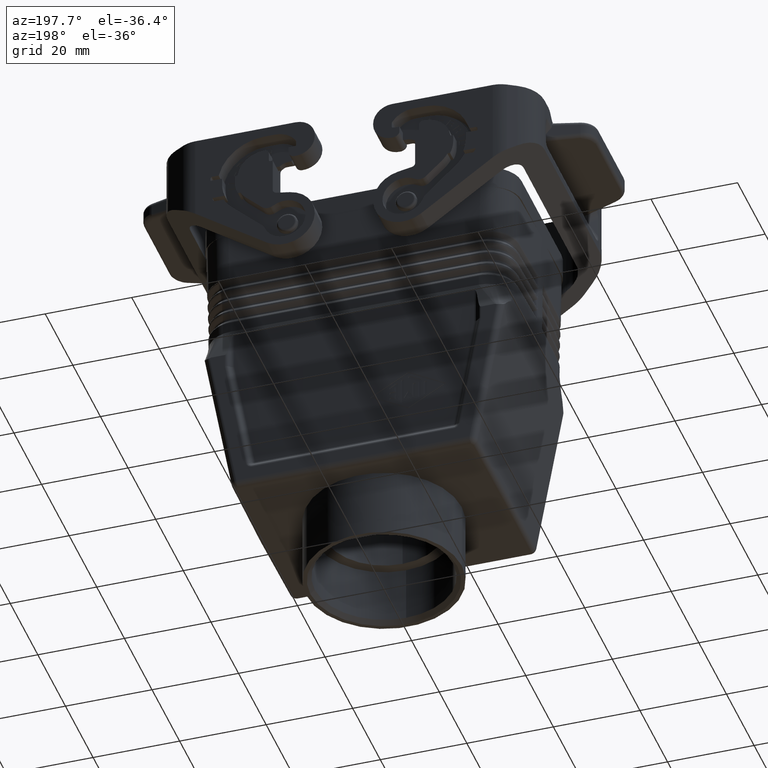
[diagram: clean part render]
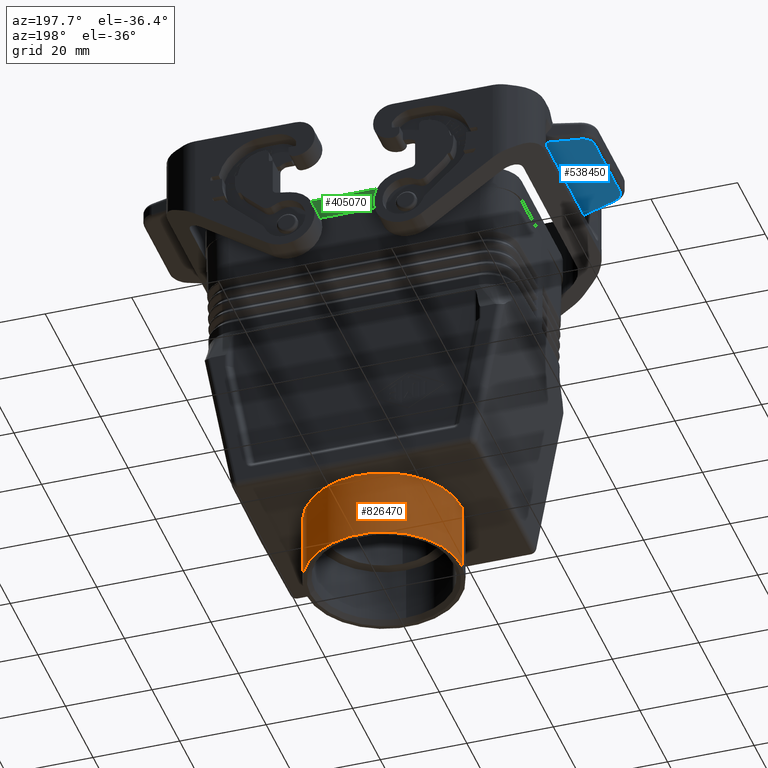
[diagram: same view with three faces highlighted in distinct colors, each labeled with its STEP entity id]
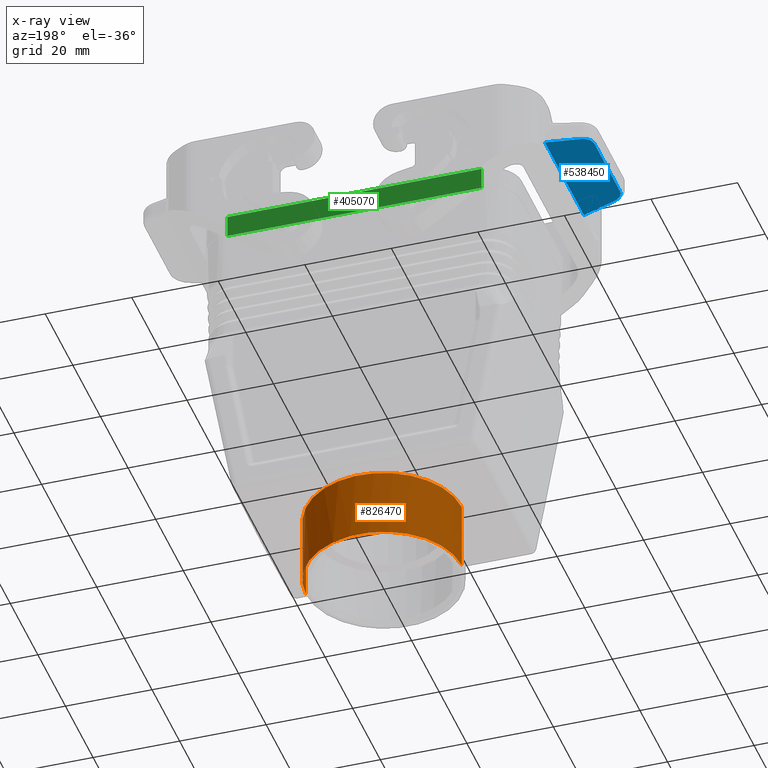
[diagram: x-ray of the same camera — body ghosted, the three highlighted faces saturated]
A machine part, auxiliary view with three faces highlighted in distinct colors.
The next image is the same camera in x-ray (body ghosted, the three faces saturated) — at least one of them is partly hidden behind the body in this view.
Their STEP definitions:

[orange] entity #826470 — the highlighted cylindrical surface (partial cylindrical patch) has radius 18 mm, axis along (0, 0, -1).
#360=CARTESIAN_POINT('',(95.6199999999998,9.40999999999998,70.));
#370=VERTEX_POINT('',#360);
#450=CARTESIAN_POINT('',(95.6199999999998,45.41,70.));
#460=VERTEX_POINT('',#450);
#183130=CARTESIAN_POINT('',(95.6199999999998,27.41,70.));
#183140=DIRECTION('',(-0.00872653549837393,0.,0.999961923064171));
#183150=DIRECTION('',(0.999961923064171,-2.86253554560525E-14,
0.00872653549837393));
#183160=AXIS2_PLACEMENT_3D('',#183130,#183140,#183150);
#183170=ELLIPSE('',#183160,18.0006854109433,18.);
#183180=EDGE_CURVE('',#460,#370,#183170,.T.);
#826160=CARTESIAN_POINT('',(95.6199999999998,27.41,70.));
#826170=DIRECTION('',(2.4980018054066E-16,-2.4980018054066E-16,1.));
#826180=DIRECTION('',(-6.24001301981464E-32,-1.,-2.4980018054066E-16));
#826190=AXIS2_PLACEMENT_3D('',#826160,#826170,#826180);
#826200=CYLINDRICAL_SURFACE('',#826190,18.);
#826210=CARTESIAN_POINT('',(95.6199999999998,45.41,70.));
#826220=DIRECTION('',(2.4980018054066E-16,-2.4980018054066E-16,1.));
#826230=VECTOR('',#826220,1.);
#826240=LINE('',#826210,#826230);
#826250=CARTESIAN_POINT('',(95.6199999999998,45.41,86.));
#826260=VERTEX_POINT('',#826250);
#826270=EDGE_CURVE('',#460,#826260,#826240,.T.);
#826280=ORIENTED_EDGE('',*,*,#826270,.F.);
#826290=CARTESIAN_POINT('',(95.6199999999998,27.41,86.));
#826300=DIRECTION('',(2.4980018054066E-16,-2.4980018054066E-16,1.));
#826310=DIRECTION('',(-6.24001301981464E-32,-1.,-2.4980018054066E-16));
#826320=AXIS2_PLACEMENT_3D('',#826290,#826300,#826310);
#826330=CIRCLE('',#826320,18.);
#826340=CARTESIAN_POINT('',(95.6199999999998,9.40999999999998,86.));
#826350=VERTEX_POINT('',#826340);
#826360=EDGE_CURVE('',#826260,#826350,#826330,.T.);
#826370=ORIENTED_EDGE('',*,*,#826360,.F.);
#826380=CARTESIAN_POINT('',(95.6199999999998,9.40999999999998,70.));
#826390=DIRECTION('',(2.4980018054066E-16,-2.4980018054066E-16,1.));
#826400=VECTOR('',#826390,1.);
#826410=LINE('',#826380,#826400);
#826420=EDGE_CURVE('',#370,#826350,#826410,.T.);
#826430=ORIENTED_EDGE('',*,*,#826420,.T.);
#826440=ORIENTED_EDGE('',*,*,#183180,.T.);
#826450=EDGE_LOOP('',(#826440,#826430,#826370,#826280));
#826460=FACE_OUTER_BOUND('',#826450,.T.);
#826470=ADVANCED_FACE('',(#826460),#826200,.T.);

[blue] entity #538450 — the highlighted planar face has unit normal (-0.0872, 0, -0.9962).
#537460=CARTESIAN_POINT('',(125.370000262344,77.9100000000809,
-15.2750226730054));
#537470=DIRECTION('',(2.16385292593205E-16,0.0871557427478867,
0.996194698091726));
#537480=DIRECTION('',(-1.,-1.86951876984489E-16,2.33568019118764E-16));
#537490=AXIS2_PLACEMENT_3D('',#537460,#537470,#537480);
#537500=PLANE('',#537490);
#537510=CARTESIAN_POINT('',(126.619999999999,78.9971557428286,
-15.3701364759832));
#537520=DIRECTION('',(1.,3.72486331023611E-16,-2.49800180540702E-16));
#537530=VECTOR('',#537520,1.);
#537540=LINE('',#537510,#537530);
#537550=CARTESIAN_POINT('',(86.4393077142602,78.9971557428286,
-15.3701364759831));
#537560=VERTEX_POINT('',#537550);
#537570=CARTESIAN_POINT('',(104.800692285739,78.9971557428286,
-15.3701364759831));
#537580=VERTEX_POINT('',#537570);
#537590=EDGE_CURVE('',#537560,#537580,#537540,.T.);
#537600=ORIENTED_EDGE('',*,*,#537590,.F.);
#537610=CARTESIAN_POINT('',(104.800692285739,78.9971557428286,
-15.3701364759831));
#537620=CARTESIAN_POINT('',(104.839302864341,78.9971557312788,
-15.3701364749726));
#537630=CARTESIAN_POINT('',(104.87790975801,78.9964103649879,
-15.370071263872));
#537640=CARTESIAN_POINT('',(104.930360229757,78.9943842736228,
-15.3698940038463));
#537650=CARTESIAN_POINT('',(104.944226505004,78.993752251118,
-15.369838709042));
#537660=CARTESIAN_POINT('',(105.081505825673,78.9865398691927,
-15.3692077073866));
#537670=CARTESIAN_POINT('',(105.204397139524,78.9724362332236,
-15.3679737991248));
#537680=CARTESIAN_POINT('',(105.448126939559,78.9290832134429,
-15.3641809013643));
#537690=CARTESIAN_POINT('',(105.568594390221,78.8998495357397,
-15.3616232859721));
#537700=CARTESIAN_POINT('',(105.804984165056,78.8267674843385,
-15.3552294349673));
#537710=CARTESIAN_POINT('',(105.920906489228,78.7829191106404,
-15.3513931993546));
#537720=CARTESIAN_POINT('',(106.146834326718,78.6810438150691,
-15.3424802658988));
#537730=CARTESIAN_POINT('',(106.256398522362,78.6232184508228,
-15.3374212020629));
#537740=CARTESIAN_POINT('',(106.467538964192,78.4945359654193,
-15.3261629433958));
#537750=CARTESIAN_POINT('',(106.569115210378,78.4236788442622,
-15.3199637485644));
#537760=CARTESIAN_POINT('',(106.666096196699,78.3466808542021,
-15.3132272973199));
#537770=CARTESIAN_POINT('',(106.938552019059,78.1303647339215,
-15.2943020890574));
#537780=CARTESIAN_POINT('',(107.171157501031,77.86842898947,
-15.2713856808456));
#537790=CARTESIAN_POINT('',(107.419005851929,77.4668198445042,
-15.2362494334926));
#537800=CARTESIAN_POINT('',(107.477623543912,77.3571002390588,
-15.2266502118496));
#537810=CARTESIAN_POINT('',(107.58082901412,77.131285197968,
-15.2068939557004));
#537820=CARTESIAN_POINT('',(107.625416792345,77.0151897623229,
-15.1967369211944));
#537830=CARTESIAN_POINT('',(107.675494176849,76.8558387066688,
-15.1827955103037));
#537840=CARTESIAN_POINT('',(107.687421691253,76.8148446632714,
-15.1792089962343));
#537850=CARTESIAN_POINT('',(107.698469764606,76.7736128781361,
-15.175601682458));
#537860=B_SPLINE_CURVE_WITH_KNOTS('',3,(#537610,#537620,#537630,#537640,
#537650,#537660,#537670,#537680,#537690,#537700,#537710,#537720,#537730,
#537740,#537750,#537760,#537770,#537780,#537790,#537800,#537810,#537820,
#537830,#537840,#537850),.UNSPECIFIED.,.F.,.F.,(4,2,2,2,2,2,2,3,2,2,2,4)
,(0.,0.134815520684531,0.183277251762181,0.61472070260816,
1.0475563713781,1.48039204014804,1.91317381269789,2.34595558524774,
3.56180159173937,3.99707836067046,4.43235512960155,4.58178959725911),
.UNSPECIFIED.);
#537870=CARTESIAN_POINT('',(107.698469764606,76.7736128781361,
-15.175601682458));
#537880=VERTEX_POINT('',#537870);
#537890=EDGE_CURVE('',#537580,#537880,#537860,.T.);
#537900=ORIENTED_EDGE('',*,*,#537890,.F.);
#537910=CARTESIAN_POINT('',(206.810030723977,-293.115768239689,
17.1855259240573));
#537920=DIRECTION('',(0.257899784197095,-0.962495097884588,
0.0842074097643991));
#537930=VECTOR('',#537920,1.);
#537940=LINE('',#537910,#537930);
#537950=CARTESIAN_POINT('',(109.751928646386,69.1100000000811,
-14.5051224339752));
#537960=VERTEX_POINT('',#537950);
#537970=EDGE_CURVE('',#537880,#537960,#537940,.T.);
#537980=ORIENTED_EDGE('',*,*,#537970,.F.);
#537990=CARTESIAN_POINT('',(126.619999999999,69.1100000000811,
-14.5051224339752));
#538000=DIRECTION('',(-1.,-3.72486331023611E-16,2.49800180540702E-16));
#538010=VECTOR('',#538000,1.);
#538020=LINE('',#537990,#538010);
#538030=CARTESIAN_POINT('',(81.4880713536133,69.1100000000811,
-14.5051224339752));
#538040=VERTEX_POINT('',#538030);
#538050=EDGE_CURVE('',#537960,#538040,#538020,.T.);
#538060=ORIENTED_EDGE('',*,*,#538050,.F.);
#538070=CARTESIAN_POINT('',(-15.5700307239778,-293.115768239689,
17.1855259240574));
#538080=DIRECTION('',(-0.257899784197095,-0.962495097884588,
0.0842074097643992));
#538090=VECTOR('',#538080,1.);
#538100=LINE('',#538070,#538090);
#538110=CARTESIAN_POINT('',(83.541530235393,76.7736128781361,
-15.175601682458));
#538120=VERTEX_POINT('',#538110);
#538130=EDGE_CURVE('',#538120,#538040,#538100,.T.);
#538140=ORIENTED_EDGE('',*,*,#538130,.T.);
#538150=CARTESIAN_POINT('',(86.4393077142602,78.9971557428286,
-15.3701364759831));
#538160=CARTESIAN_POINT('',(86.4006971356585,78.9971557312788,
-15.3701364749727));
#538170=CARTESIAN_POINT('',(86.3620902419894,78.9964103649879,
-15.370071263872));
#538180=CARTESIAN_POINT('',(86.3096397702421,78.9943842736228,
-15.3698940038463));
#538190=CARTESIAN_POINT('',(86.2957734949952,78.993752251118,
-15.369838709042));
#538200=CARTESIAN_POINT('',(86.1584941743258,78.9865398691927,
-15.3692077073866));
#538210=CARTESIAN_POINT('',(86.035602860475,78.9724362332236,
-15.3679737991248));
#538220=CARTESIAN_POINT('',(85.7918730604401,78.9290832134429,
-15.3641809013644));
#538230=CARTESIAN_POINT('',(85.6714056097782,78.8998495357397,
-15.3616232859721));
#538240=CARTESIAN_POINT('',(85.4350158349434,78.8267674843385,
-15.3552294349673));
#538250=CARTESIAN_POINT('',(85.3190935107706,78.7829191106404,
-15.3513931993546));
#538260=CARTESIAN_POINT('',(85.093165673281,78.6810438150691,
-15.3424802658988));
#538270=CARTESIAN_POINT('',(84.9836014776371,78.6232184508228,
-15.3374212020629));
#538280=CARTESIAN_POINT('',(84.772461035807,78.4945359654193,
-15.3261629433958));
#538290=CARTESIAN_POINT('',(84.6708847896206,78.4236788442622,
-15.3199637485644));
#538300=CARTESIAN_POINT('',(84.5739038032999,78.3466808542021,
-15.3132272973199));
#538310=CARTESIAN_POINT('',(84.30144798094,78.1303647339215,
-15.2943020890574));
#538320=CARTESIAN_POINT('',(84.0688424989676,77.86842898947,
-15.2713856808456));
#538330=CARTESIAN_POINT('',(83.8209941480701,77.4668198445042,
-15.2362494334926));
#538340=CARTESIAN_POINT('',(83.7623764560867,77.3571002390588,
-15.2266502118496));
#538350=CARTESIAN_POINT('',(83.6591709858786,77.131285197968,
-15.2068939557004));
#538360=CARTESIAN_POINT('',(83.6145832076539,77.0151897623229,
-15.1967369211944));
#538370=CARTESIAN_POINT('',(83.5645058231505,76.8558387066688,
-15.1827955103037));
#538380=CARTESIAN_POINT('',(83.5525783087461,76.8148446632714,
-15.1792089962343));
#538390=CARTESIAN_POINT('',(83.541530235393,76.7736128781361,
-15.175601682458));
#538400=B_SPLINE_CURVE_WITH_KNOTS('',3,(#538150,#538160,#538170,#538180,
#538190,#538200,#538210,#538220,#538230,#538240,#538250,#538260,#538270,
#538280,#538290,#538300,#538310,#538320,#538330,#538340,#538350,#538360,
#538370,#538380,#538390),.UNSPECIFIED.,.F.,.F.,(4,2,2,2,2,2,2,3,2,2,2,4)
,(0.,0.134815520684531,0.183277251762181,0.61472070260816,
1.0475563713781,1.48039204014804,1.91317381269789,2.34595558524774,
3.56180159173937,3.99707836067046,4.43235512960155,4.58178959725911),
.UNSPECIFIED.);
#538410=EDGE_CURVE('',#537560,#538120,#538400,.T.);
#538420=ORIENTED_EDGE('',*,*,#538410,.T.);
#538430=EDGE_LOOP('',(#538420,#538140,#538060,#537980,#537900,#537600));
#538440=FACE_OUTER_BOUND('',#538430,.T.);
#538450=ADVANCED_FACE('',(#538440),#537500,.T.);

[green] entity #405070 — the highlighted planar face has unit normal (0, -1, 0).
#398400=CARTESIAN_POINT('',(74.2199999999999,56.81,0.250000000000007));
#398410=VERTEX_POINT('',#398400);
#398520=CARTESIAN_POINT('',(74.2199999999999,-1.98999999989991,
0.249999999999993));
#398530=VERTEX_POINT('',#398520);
#398560=CARTESIAN_POINT('',(74.2199999999999,25.16326959705,0.25));
#398570=DIRECTION('',(4.65187877420629E-18,1.,2.66505956485224E-16));
#398580=VECTOR('',#398570,1.);
#398590=LINE('',#398560,#398580);
#398600=EDGE_CURVE('',#398530,#398410,#398590,.T.);
#401310=CARTESIAN_POINT('',(74.2199999999999,56.81,-4.94999999999997));
#401320=VERTEX_POINT('',#401310);
#401370=CARTESIAN_POINT('',(74.2199999999999,25.16326959705,
-4.94999999999997));
#401380=DIRECTION('',(4.65187877420629E-18,1.,2.66505956485224E-16));
#401390=VECTOR('',#401380,1.);
#401400=LINE('',#401370,#401390);
#401410=CARTESIAN_POINT('',(74.2199999999999,-1.98999999989991,
-4.94999999999998));
#401420=VERTEX_POINT('',#401410);
#401430=EDGE_CURVE('',#401420,#401320,#401400,.T.);
#404860=CARTESIAN_POINT('',(74.2199999999999,-1.94106613380517,
0.250000000000021));
#404870=DIRECTION('',(1.,-4.65187877420571E-18,-2.22044604925031E-15));
#404880=DIRECTION('',(-4.6518787742063E-18,-1.,-2.66505956485224E-16));
#404890=AXIS2_PLACEMENT_3D('',#404860,#404870,#404880);
#404900=PLANE('',#404890);
#404910=ORIENTED_EDGE('',*,*,#398600,.T.);
#404920=CARTESIAN_POINT('',(74.22,-1.98999999989993,34.2285391921959));
#404930=DIRECTION('',(2.22044604925031E-15,-2.66505956485224E-16,1.));
#404940=VECTOR('',#404930,1.);
#404950=LINE('',#404920,#404940);
#404960=EDGE_CURVE('',#401420,#398530,#404950,.T.);
#404970=ORIENTED_EDGE('',*,*,#404960,.T.);
#404980=ORIENTED_EDGE('',*,*,#401430,.F.);
#404990=CARTESIAN_POINT('',(74.22,56.81,34.2285391921959));
#405000=DIRECTION('',(2.22044604925031E-15,-2.66505956485224E-16,1.));
#405010=VECTOR('',#405000,1.);
#405020=LINE('',#404990,#405010);
#405030=EDGE_CURVE('',#401320,#398410,#405020,.T.);
#405040=ORIENTED_EDGE('',*,*,#405030,.F.);
#405050=EDGE_LOOP('',(#405040,#404980,#404970,#404910));
#405060=FACE_OUTER_BOUND('',#405050,.T.);
#405070=ADVANCED_FACE('',(#405060),#404900,.F.);